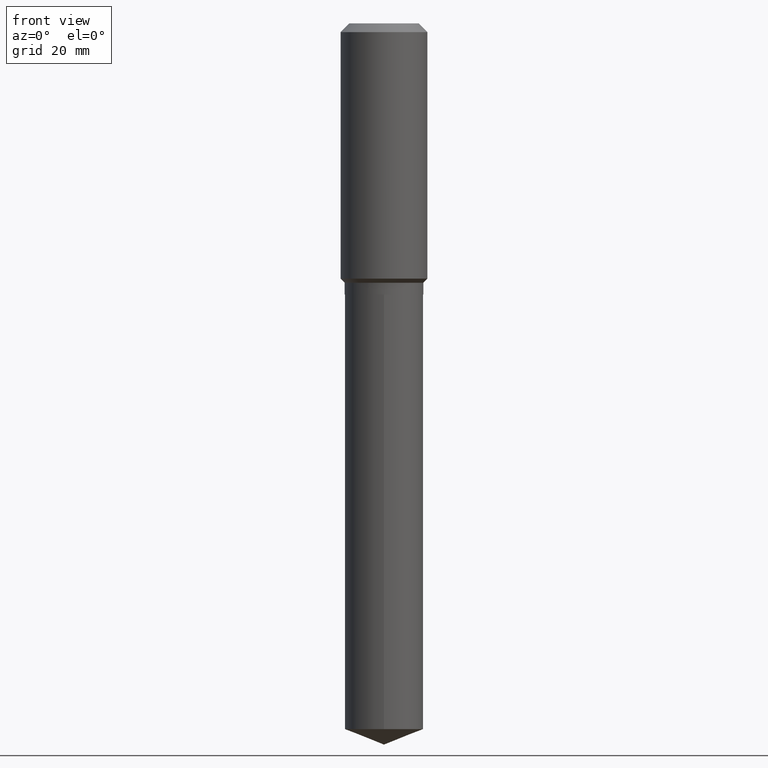
[diagram: clean part render]
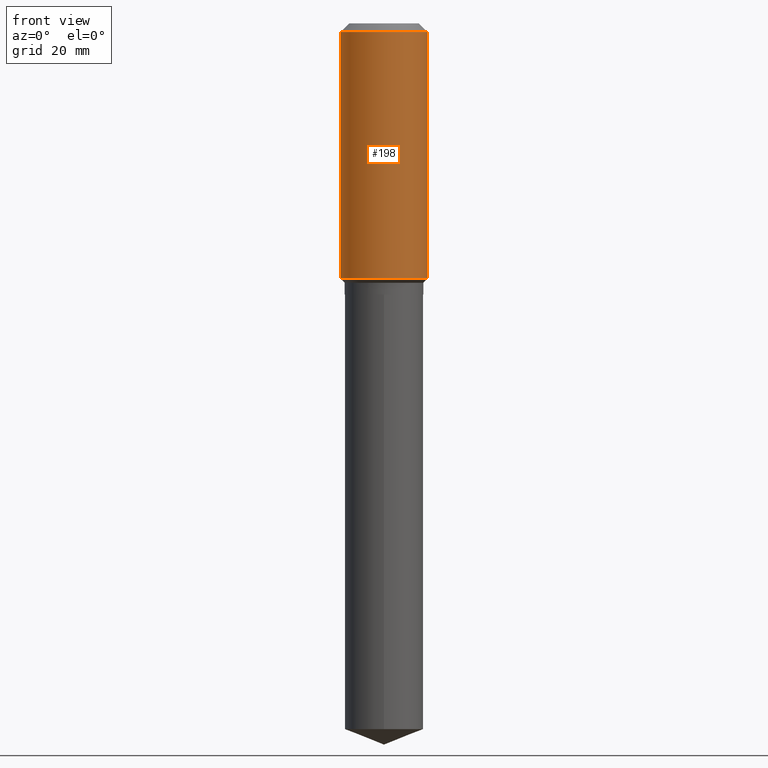
[diagram: same view with one face highlighted and labeled with its STEP entity id]
A machine part, front view. The second image highlights one B-rep face of the part: STEP entity #198.
In plain terms, the highlighted cylindrical surface (partial cylindrical patch) has radius 7.9997 mm, axis along (-0, 0, 1).
Its self-contained STEP definition (entity closure, byte-faithful):
#3 = VECTOR ( 'NONE', #181, 39.37007874015748143 ) ;
#13 = AXIS2_PLACEMENT_3D ( 'NONE', #252, #286, #219 ) ;
#30 = CARTESIAN_POINT ( 'NONE',  ( -0.3149500000000001743, 2.237854346276436774E-15, -1.549218606675783237E-29 ) ) ;
#33 = LINE ( 'NONE', #30, #127 ) ;
#37 = ORIENTED_EDGE ( 'NONE', *, *, #381, .T. ) ;
#87 = FACE_OUTER_BOUND ( 'NONE', #296, .T. ) ;
#90 = ORIENTED_EDGE ( 'NONE', *, *, #473, .F. ) ;
#97 = LINE ( 'NONE', #391, #3 ) ;
#98 = CYLINDRICAL_SURFACE ( 'NONE', #409, 0.3149500000000001743 ) ;
#101 = DIRECTION ( 'NONE',  ( 1.000000000000000000, -6.982962677686264344E-15, 0.000000000000000000 ) ) ;
#102 = CARTESIAN_POINT ( 'NONE',  ( 0.3149500000000002298, -8.668649868079754176E-15, -1.852899999999999547 ) ) ;
#113 = EDGE_CURVE ( 'NONE', #138, #377, #33, .T. ) ;
#127 = VECTOR ( 'NONE', #220, 39.37007874015748143 ) ;
#138 = VERTEX_POINT ( 'NONE', #411 ) ;
#147 = CARTESIAN_POINT ( 'NONE',  ( 4.531209150980438038E-29, -6.469365772742462727E-15, -1.852899999999999547 ) ) ;
#177 = DIRECTION ( 'NONE',  ( -2.445468806185136597E-29, 3.491481338843145583E-15, 1.000000000000000000 ) ) ;
#179 = CARTESIAN_POINT ( 'NONE',  ( 0.3149500000000000077, -2.419212504871020909E-15, -0.06299000000000037902 ) ) ;
#181 = DIRECTION ( 'NONE',  ( -2.445468806185136877E-29, 3.491481338843145188E-15, 1.000000000000000000 ) ) ;
#198 = ADVANCED_FACE ( 'NONE', ( #87 ), #98, .T. ) ;
#203 = DIRECTION ( 'NONE',  ( 1.000000000000000000, -6.982962677686265922E-15, 4.876176775795935232E-29 ) ) ;
#219 = DIRECTION ( 'NONE',  ( 1.000000000000000000, -6.982962677686266711E-15, 0.000000000000000000 ) ) ;
#220 = DIRECTION ( 'NONE',  ( -2.445468806185136877E-29, 3.491481338843145188E-15, 1.000000000000000000 ) ) ;
#239 = VERTEX_POINT ( 'NONE', #102 ) ;
#244 = CARTESIAN_POINT ( 'NONE',  ( 0.000000000000000000, 0.000000000000000000, 0.000000000000000000 ) ) ;
#252 = CARTESIAN_POINT ( 'NONE',  ( 1.540400801016026505E-30, -2.199284095337310628E-16, -0.06299000000000037902 ) ) ;
#258 = CARTESIAN_POINT ( 'NONE',  ( -0.3149500000000000077, -1.106792744861659912E-15, -0.06299000000000037902 ) ) ;
#261 = EDGE_CURVE ( 'NONE', #239, #413, #97, .T. ) ;
#272 = ORIENTED_EDGE ( 'NONE', *, *, #113, .F. ) ;
#286 = DIRECTION ( 'NONE',  ( -2.445468806185136597E-29, 3.491481338843145583E-15, 1.000000000000000000 ) ) ;
#296 = EDGE_LOOP ( 'NONE', ( #272, #37, #300, #90 ) ) ;
#300 = ORIENTED_EDGE ( 'NONE', *, *, #261, .T. ) ;
#344 = CIRCLE ( 'NONE', #401, 0.3149500000000002298 ) ;
#369 = CIRCLE ( 'NONE', #13, 0.3149500000000000077 ) ;
#377 = VERTEX_POINT ( 'NONE', #258 ) ;
#381 = EDGE_CURVE ( 'NONE', #138, #239, #344, .T. ) ;
#391 = CARTESIAN_POINT ( 'NONE',  ( 0.3149500000000001743, -2.199284095337290660E-15, 1.535751875536930690E-29 ) ) ;
#394 = DIRECTION ( 'NONE',  ( -2.445468806185136597E-29, 3.491481338843145583E-15, 1.000000000000000000 ) ) ;
#401 = AXIS2_PLACEMENT_3D ( 'NONE', #147, #177, #101 ) ;
#409 = AXIS2_PLACEMENT_3D ( 'NONE', #244, #394, #203 ) ;
#411 = CARTESIAN_POINT ( 'NONE',  ( -0.3149500000000002298, -4.231511426466025954E-15, -1.852899999999999547 ) ) ;
#413 = VERTEX_POINT ( 'NONE', #179 ) ;
#473 = EDGE_CURVE ( 'NONE', #377, #413, #369, .T. ) ;